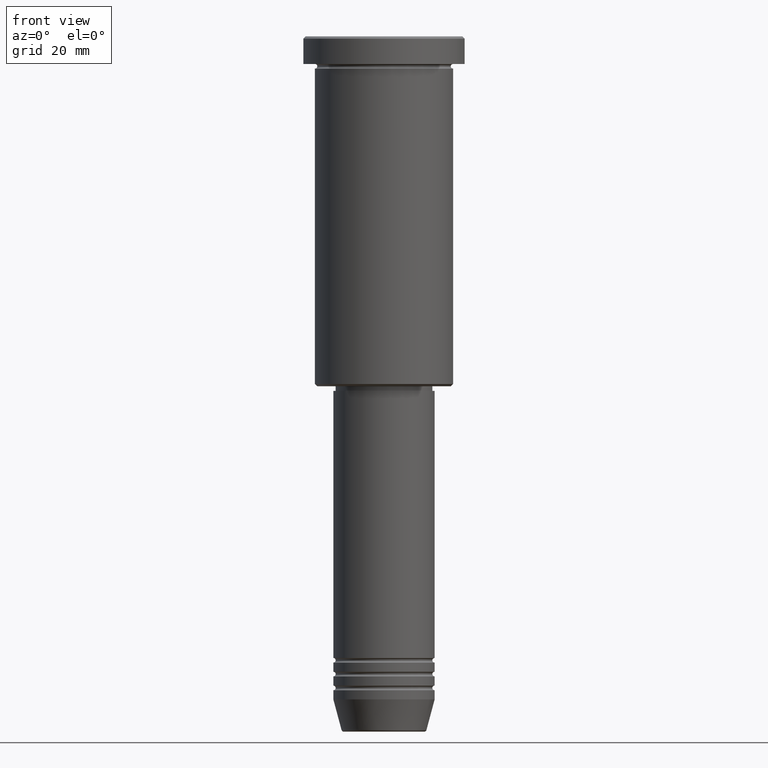
[diagram: clean part render]
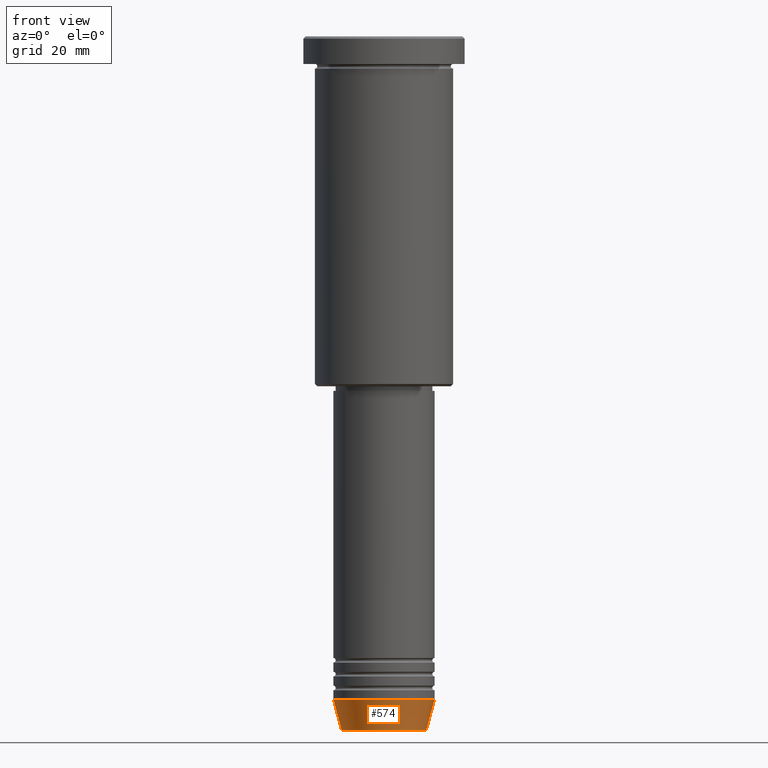
[diagram: same view with one face highlighted and labeled with its STEP entity id]
A machine part, front view. The second image highlights one B-rep face of the part: STEP entity #574.
In plain terms, the highlighted conical surface has half-angle 15 deg.
Its self-contained STEP definition (entity closure, byte-faithful):
#18 = VERTEX_POINT ( 'NONE', #1041 ) ;
#38 = VERTEX_POINT ( 'NONE', #138 ) ;
#67 = EDGE_LOOP ( 'NONE', ( #981, #755, #840, #748 ) ) ;
#77 = CARTESIAN_POINT ( 'NONE',  ( 0.000000000000000000, 0.000000000000000000, -150.6294095225512137 ) ) ;
#87 = DIRECTION ( 'NONE',  ( -0.000000000000000000, -0.000000000000000000, 1.000000000000000000 ) ) ;
#115 = LINE ( 'NONE', #659, #228 ) ;
#119 = CARTESIAN_POINT ( 'NONE',  ( 11.00000000000000000, 0.000000000000000000, -144.0000000000000000 ) ) ;
#138 = CARTESIAN_POINT ( 'NONE',  ( -11.00000000000000000, 1.347111479062088405E-15, -144.0000000000000000 ) ) ;
#155 = LINE ( 'NONE', #526, #170 ) ;
#170 = VECTOR ( 'NONE', #514, 1000.000000000000000 ) ;
#228 = VECTOR ( 'NONE', #565, 1000.000000000000000 ) ;
#246 = DIRECTION ( 'NONE',  ( -0.000000000000000000, -0.000000000000000000, 1.000000000000000000 ) ) ;
#271 = DIRECTION ( 'NONE',  ( 1.000000000000000000, 0.000000000000000000, 0.000000000000000000 ) ) ;
#316 = CARTESIAN_POINT ( 'NONE',  ( 0.000000000000000000, 0.000000000000000000, -144.0000000000000000 ) ) ;
#342 = EDGE_CURVE ( 'NONE', #18, #38, #115, .T. ) ;
#418 = VERTEX_POINT ( 'NONE', #119 ) ;
#427 = DIRECTION ( 'NONE',  ( 1.000000000000000000, 0.000000000000000000, 0.000000000000000000 ) ) ;
#510 = AXIS2_PLACEMENT_3D ( 'NONE', #316, #246, #427 ) ;
#514 = DIRECTION ( 'NONE',  ( 0.2588190451025213501, 0.000000000000000000, 0.9659258262890680902 ) ) ;
#526 = CARTESIAN_POINT ( 'NONE',  ( 11.00000000000000000, 0.000000000000000000, -144.0000000000000000 ) ) ;
#541 = EDGE_CURVE ( 'NONE', #736, #418, #155, .T. ) ;
#560 = EDGE_CURVE ( 'NONE', #18, #736, #1177, .T. ) ;
#565 = DIRECTION ( 'NONE',  ( -0.2588190451025213501, 3.169619151431772337E-17, 0.9659258262890680902 ) ) ;
#574 = ADVANCED_FACE ( 'NONE', ( #880 ), #1120, .T. ) ;
#659 = CARTESIAN_POINT ( 'NONE',  ( -11.00000000000000000, 1.347111479062088405E-15, -144.0000000000000000 ) ) ;
#736 = VERTEX_POINT ( 'NONE', #861 ) ;
#748 = ORIENTED_EDGE ( 'NONE', *, *, #819, .F. ) ;
#755 = ORIENTED_EDGE ( 'NONE', *, *, #560, .T. ) ;
#773 = DIRECTION ( 'NONE',  ( 1.000000000000000000, 0.000000000000000000, 0.000000000000000000 ) ) ;
#778 = CIRCLE ( 'NONE', #925, 11.00000000000000000 ) ;
#781 = DIRECTION ( 'NONE',  ( -0.000000000000000000, -0.000000000000000000, 1.000000000000000000 ) ) ;
#819 = EDGE_CURVE ( 'NONE', #38, #418, #778, .T. ) ;
#840 = ORIENTED_EDGE ( 'NONE', *, *, #541, .T. ) ;
#861 = CARTESIAN_POINT ( 'NONE',  ( 9.223655072137194821, 0.000000000000000000, -150.6294095225512137 ) ) ;
#867 = AXIS2_PLACEMENT_3D ( 'NONE', #77, #781, #773 ) ;
#880 = FACE_OUTER_BOUND ( 'NONE', #67, .T. ) ;
#925 = AXIS2_PLACEMENT_3D ( 'NONE', #1083, #87, #271 ) ;
#981 = ORIENTED_EDGE ( 'NONE', *, *, #342, .F. ) ;
#1041 = CARTESIAN_POINT ( 'NONE',  ( -9.223655072137194821, 1.238341722557647596E-15, -150.6294095225512137 ) ) ;
#1083 = CARTESIAN_POINT ( 'NONE',  ( 0.000000000000000000, 0.000000000000000000, -144.0000000000000000 ) ) ;
#1120 = CONICAL_SURFACE ( 'NONE', #510, 11.00000000000000000, 0.2617993877991500740 ) ;
#1177 = CIRCLE ( 'NONE', #867, 9.223655072137194821 ) ;